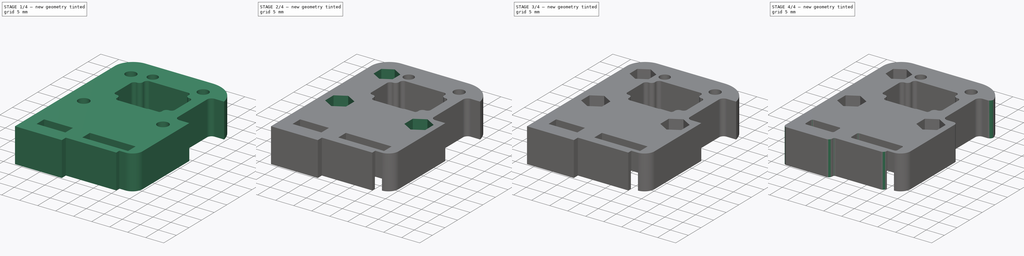
[diagram: build sequence overview — one tinted view per stage of 4, left to right]
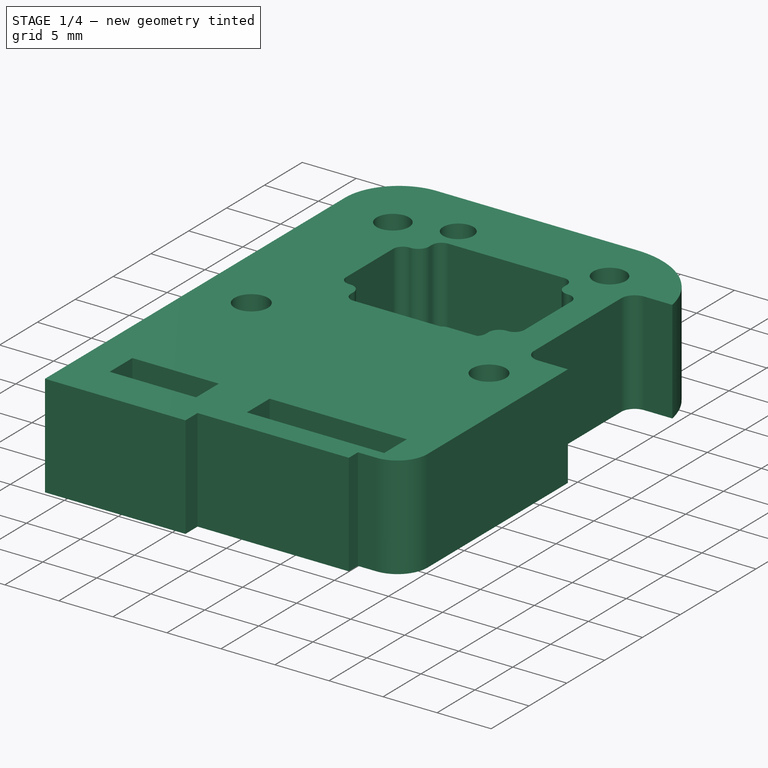
[diagram: stage 1 of 4 — iso view after this stage's code; geometry added in this stage tinted green]
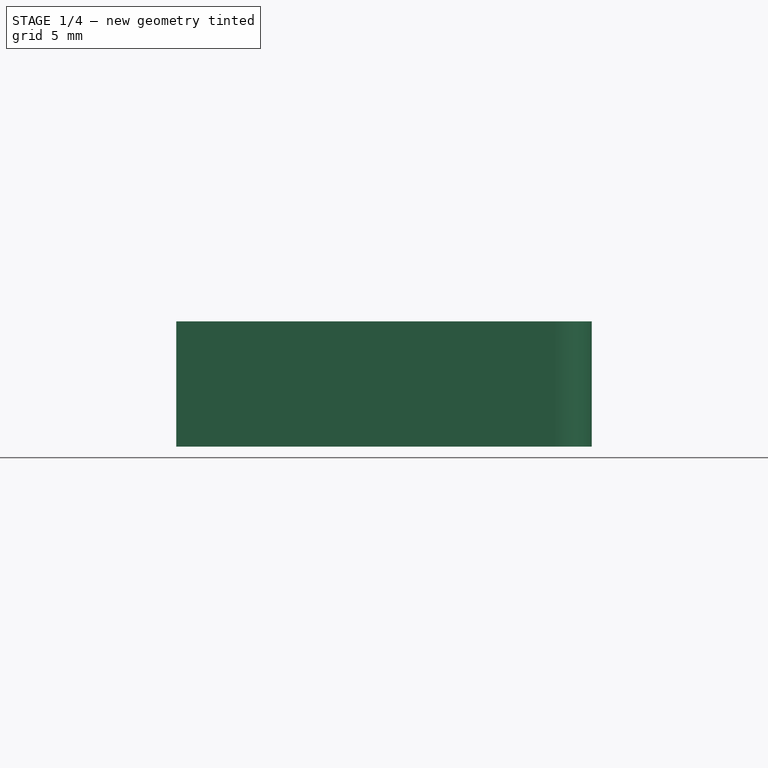
[diagram: stage 1 of 4 — front view after this stage's code; geometry added in this stage tinted green]
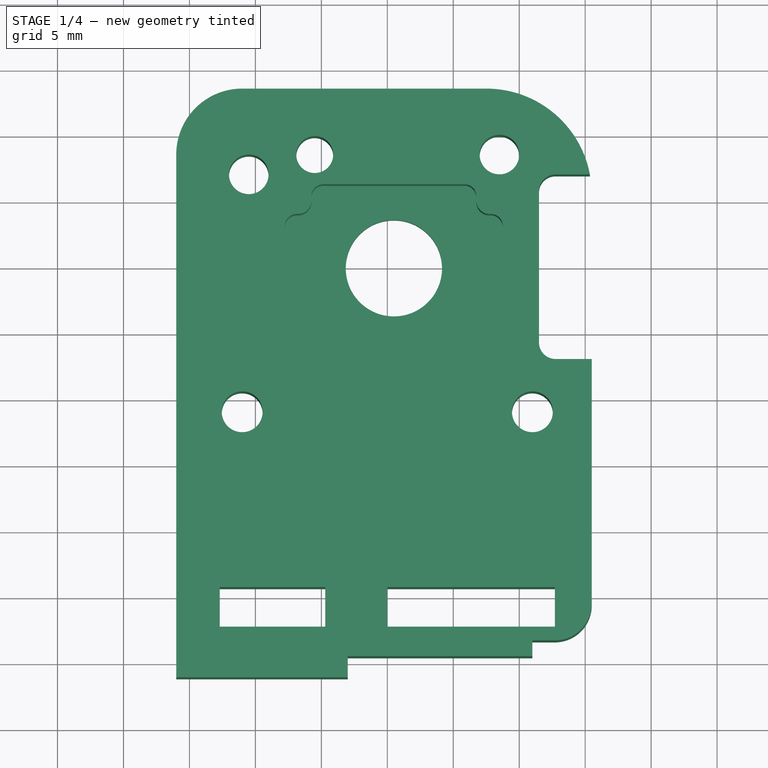
[diagram: stage 1 of 4 — top view after this stage's code; geometry added in this stage tinted green]
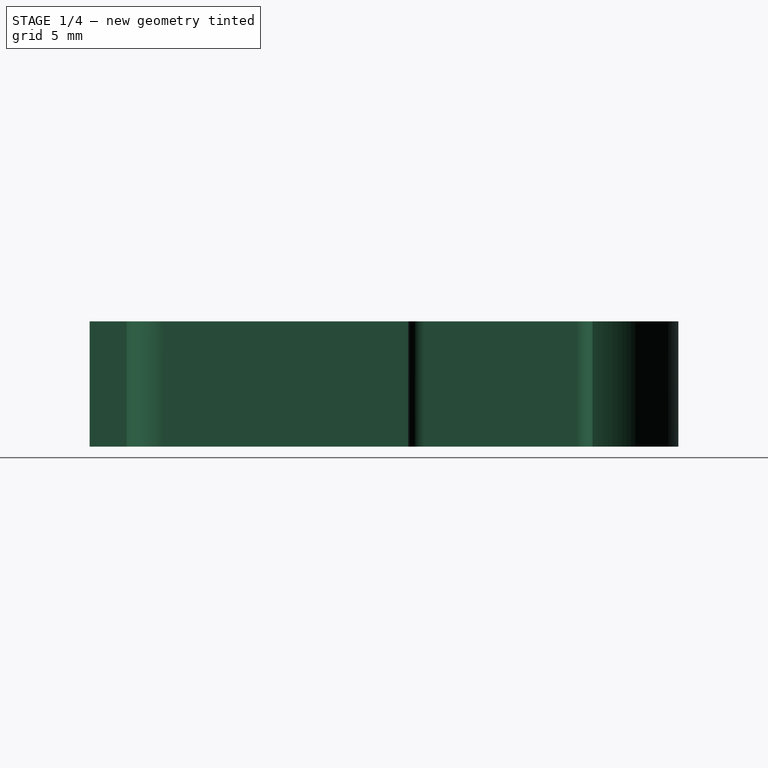
[diagram: stage 1 of 4 — right view after this stage's code; geometry added in this stage tinted green]
FCSTD DOCUMENT  (FreeCAD 0.18.4R)
Label: MJ_3d_holder_left_hybrid_2nd_rotary
License: All rights reserved
LicenseURL: http://en.wikipedia.org/wiki/All_rights_reserved
objects: Sketcher::SketchObject×9, PartDesign::Pocket×8, PartDesign::Fillet×2, PartDesign::Pad×1, PartDesign::Body×1
note: 30 computed .brp shape members not serialized (recipe doc carries the construction recipe); baked Part::Feature solids carry a one-line shape summary decoded from their .brp

FEATURE [Sketcher::SketchObject] Sketch
  MapMode = 5
  Support = -> [XY_Plane]
  sketch-geometry (37):
    g0: GeomPoint X=0 Y=-21.98 Z=0
    g1: LineSegment [constr] StartX=-12.7 StartY=-15.63 StartZ=0 EndX=12.7 EndY=-15.63 EndZ=0
    g2: LineSegment [constr] StartX=12.7 StartY=-15.63 StartZ=0 EndX=12.7 EndY=-28.33 EndZ=0
    g3: LineSegment [constr] StartX=12.7 StartY=-28.33 StartZ=0 EndX=-12.7 EndY=-28.33 EndZ=0
    g4: LineSegment [constr] StartX=-12.7 StartY=-28.33 StartZ=0 EndX=-12.7 EndY=-15.63 EndZ=0
    g5: Circle [constr] CenterX=-10.16 CenterY=-25.79 CenterZ=0 NormalX=0 NormalY=0 NormalZ=1 AngleXU=0 Radius=0.5
    g6: Circle [constr] CenterX=2.54 CenterY=-25.79 CenterZ=0 NormalX=0 NormalY=0 NormalZ=1 AngleXU=0 Radius=0.5
    g7: Circle [constr] CenterX=10.16 CenterY=-25.79 CenterZ=0 NormalX=0 NormalY=0 NormalZ=1 AngleXU=0 Radius=0.5
    g8: Circle CenterX=-11 CenterY=-11 CenterZ=0 NormalX=0 NormalY=0 NormalZ=1 AngleXU=0 Radius=1.55
    g9: Circle CenterX=11 CenterY=-11 CenterZ=0 NormalX=0 NormalY=0 NormalZ=1 AngleXU=0 Radius=1.55
    g10: LineSegment StartX=-11 StartY=13.5 StartZ=0 EndX=7.5 EndY=13.5 EndZ=0
    g11: LineSegment StartX=15.5 StartY=5.5 StartZ=0 EndX=15.5 EndY=-25.53 EndZ=0
    g12: LineSegment StartX=-16 StartY=-31.13 StartZ=0 EndX=-16 EndY=8.5 EndZ=0
    g13: ArcOfCircle CenterX=-11 CenterY=8.5 CenterZ=0 NormalX=0 NormalY=0 NormalZ=1 AngleXU=0 Radius=5 StartAngle=1.5708 EndAngle=3.14159
    g14: ArcOfCircle CenterX=7.5 CenterY=5.5 CenterZ=0 NormalX=0 NormalY=0 NormalZ=1 AngleXU=0 Radius=8 StartAngle=0 EndAngle=1.5708
    g15: LineSegment StartX=-12.7 StartY=-24.29 StartZ=0 EndX=-4.7 EndY=-24.29 EndZ=0
    g16: LineSegment StartX=-4.7 StartY=-24.29 StartZ=0 EndX=-4.7 EndY=-27.29 EndZ=0
    g17: LineSegment StartX=-4.7 StartY=-27.29 StartZ=0 EndX=-12.7 EndY=-27.29 EndZ=0
    g18: LineSegment StartX=-12.7 StartY=-27.29 StartZ=0 EndX=-12.7 EndY=-24.29 EndZ=0
    g19: LineSegment StartX=1.5e-15 StartY=-24.29 StartZ=0 EndX=12.7 EndY=-24.29 EndZ=0
    g20: LineSegment StartX=12.7 StartY=-24.29 StartZ=0 EndX=12.7 EndY=-27.29 EndZ=0
    g21: LineSegment StartX=12.7 StartY=-27.29 StartZ=0 EndX=1.8e-15 EndY=-27.29 EndZ=0
    g22: LineSegment StartX=1.5e-15 StartY=-27.29 StartZ=0 EndX=1.5e-15 EndY=-24.29 EndZ=0
    g23: GeomPoint X=6.35 Y=-25.79 Z=0
    g24: LineSegment StartX=11 StartY=-29.53 StartZ=0 EndX=11 EndY=-28.33 EndZ=0
    g25: LineSegment StartX=11 StartY=-28.33 StartZ=0 EndX=12.7 EndY=-28.33 EndZ=0
    g26: Circle [constr] CenterX=-1e-16 CenterY=-30.87 CenterZ=0 NormalX=0 NormalY=0 NormalZ=1 AngleXU=0 Radius=0.5
    g27: Circle [constr] CenterX=2.54 CenterY=-30.87 CenterZ=0 NormalX=0 NormalY=0 NormalZ=1 AngleXU=0 Radius=0.5
    g28: Circle [constr] CenterX=5.08 CenterY=-30.87 CenterZ=0 NormalX=0 NormalY=0 NormalZ=1 AngleXU=0 Radius=0.5
    g29: LineSegment StartX=-3 StartY=-31.13 StartZ=0 EndX=-3 EndY=-29.53 EndZ=0
    g30: LineSegment StartX=-3 StartY=-29.53 StartZ=0 EndX=11 EndY=-29.53 EndZ=0
    g31: LineSegment StartX=-3 StartY=-31.13 StartZ=0 EndX=-16 EndY=-31.13 EndZ=0
    g32: ArcOfCircle CenterX=12.7 CenterY=-25.53 CenterZ=0 NormalX=0 NormalY=0 NormalZ=1 AngleXU=0 Radius=2.8 StartAngle=4.71239 EndAngle=6.28319
    g33: Circle CenterX=8.5 CenterY=8.5 CenterZ=0 NormalX=0 NormalY=0 NormalZ=1 AngleXU=0 Radius=1.5
    g34: Circle CenterX=-10.5 CenterY=7 CenterZ=0 NormalX=0 NormalY=0 NormalZ=1 AngleXU=0 Radius=1.5
    g35: Circle CenterX=0.5 CenterY=0 CenterZ=0 NormalX=0 NormalY=0 NormalZ=1 AngleXU=0 Radius=3.65
    g36: Circle CenterX=-5.5 CenterY=8.5 CenterZ=0 NormalX=0 NormalY=0 NormalZ=1 AngleXU=0 Radius=1.4
  constraints (102):
    c: PointOnObject(g0,g-2)
    c: Coincident(g1,g2)
    c: Coincident(g2,g3)
    c: Coincident(g3,g4)
    c: Coincident(g4,g1)
    c: Horizontal(g1)
    c: Horizontal(g3)
    c: Vertical(g2)
    c: Vertical(g4)
    c: DistanceY(g2,g2) = 12.7
    c: DistanceX(g1,g1) = 25.4
    c: Symmetric(g1,g2,g0)
    c: Horizontal(g7,g6)
    c: Horizontal(g6,g5)
    c: Equal(g7,g6)
    c: Equal(g6,g5)
    c: Diameter(g7) = 1
    c: DistanceX(g0,g6) = 2.54
    c: DistanceX(g5,g0) = 10.16
    c: DistanceX(g6,g7) = 7.62
    c: Equal(g9,g8)
    c: Symmetric(g8,g9,g-2)
    c: DistanceX(g8,g9) = 22
    c: Diameter(g9) = 3.1
    c: Coincident(g31,g12)
    c: Vertical(g11)
    c: Vertical(g12)
    c: Tangent(g12,g13) = 1.5708
    c: Tangent(g10,g13) = 1.5708
    c: Tangent(g10,g14) = 1.5708
    c: Tangent(g11,g14) = 1.5708
    c: Radius(g14) = 8
    c: DistanceX(g12,g1) = 3.3
    c: DistanceY(g31,g3) = 2.8
    c: Coincident(g15,g16)
    c: Coincident(g16,g17)
    c: Coincident(g17,g18)
    c: Coincident(g18,g15)
    c: Horizontal(g15)
    c: Horizontal(g17)
    c: Vertical(g16)
    c: Vertical(g18)
    c: Coincident(g19,g20)
    c: Coincident(g20,g21)
    c: Coincident(g21,g22)
    c: Coincident(g22,g19)
    c: Horizontal(g19)
    c: Horizontal(g21)
    c: Vertical(g20)
    c: Vertical(g22)
    c: Equal(g16,g22)
    c: DistanceY(g18,g18) = 3
    c: DistanceX(g17,g17) = 8
    c: DistanceX(g21,g21) = 12.7
    c: DistanceX(g15,g5) = 2.54
    c: Symmetric(g6,g7,g23)
    c: DistanceY(g6,g0) = 3.81
    c: Horizontal(g15,g19)
    c: Symmetric(g19,g20,g23)
    c: Vertical(g24)
    c: Coincident(g24,g25)
    c: Horizontal(g25)
    c: Equal(g28,g27)
    c: Equal(g27,g26)
    c: Horizontal(g28,g27)
    c: Horizontal(g27,g26)
    c: Diameter(g26) = 1
    c: Vertical(g27,g6)
    c: DistanceX(g27,g28) = 2.54
    c: DistanceX(g26,g27) = 2.54
    c: DistanceY(g26,g6) = 5.08
    c: Vertical(g29)
    c: Coincident(g29,g30)
    c: Horizontal(g30)
    c: Coincident(g24,g30)
    c: DistanceX(g31,g31) = 13
    c: DistanceY(g29,g3) = 1.2
    c: DistanceY(g24,g24) = 1.2
    c: DistanceX(g30,g30) = 14
    c: Tangent(g11,g32) = 1.5708
    c: Tangent(g25,g32) = -1.5708
    c: Vertical(g25,g2)
    c: Horizontal(g31)
    c: Coincident(g29,g31)
    c: DistanceX(g1,g11) = 2.8
    c: Radius(g13) = 5
    c: DistanceY(g8,g-1) = 11
    c: DistanceY(g29,g-1) = 31.13
    c: Horizontal(g10)
    c: Diameter(g33) = 3
    c: DistanceX(g-1,g33) = 8.5
    c: DistanceY(g-1,g33) = 8.5
    c: Diameter(g34) = 3
    c: DistanceX(g34,g-1) = 10.5
    c: DistanceY(g-1,g34) = 7
    c: PointOnObject(g35,g-1)
    c: DistanceX(g-1,g35) = 0.5
    c: Diameter(g35) = 7.3
    c: Diameter(g36) = 2.8
    c: DistanceY(g-1,g36) = 8.5
    c: DistanceX(g36,g33) = 14
    c: DistanceY(g-1,g14) = 5.5
FEATURE [PartDesign::Pad] Pad
  Length = 9.5
  Length2 = 100
  Profile = -> Sketch
  Type = 0
FEATURE [Sketcher::SketchObject] Sketch002  label="Sketch_rotary_7mm_pocket"
  MapMode = 5
  Placement = pos=(0,0,9.5) rot=(0,0,1;0rad)
  Support = -> [Pad]
  sketch-geometry (25):
    g0: LineSegment StartX=7.85 StartY=-4 StartZ=0 EndX=7.75 EndY=-4 EndZ=0
    g1: LineSegment StartX=-7.75 StartY=-3.1 StartZ=0 EndX=-7.75 EndY=3.1 EndZ=0
    g2: LineSegment StartX=-6.85 StartY=4 StartZ=0 EndX=-6.75 EndY=4 EndZ=0
    g3: LineSegment StartX=8.75 StartY=3.1 StartZ=0 EndX=8.75 EndY=-3.1 EndZ=0
    g4: LineSegment StartX=-4.85 StartY=6.25 StartZ=0 EndX=5.85 EndY=6.25 EndZ=0
    g5: LineSegment StartX=6.75 StartY=5.35 StartZ=0 EndX=6.75 EndY=5 EndZ=0
    g6: LineSegment StartX=5.85 StartY=-6.25 StartZ=0 EndX=-4.85 EndY=-6.25 EndZ=0
    g7: LineSegment StartX=-5.75 StartY=-5.35 StartZ=0 EndX=-5.75 EndY=-5 EndZ=0
    g8: LineSegment StartX=7.75 StartY=4 StartZ=0 EndX=7.85 EndY=4 EndZ=0
    g9: LineSegment StartX=-6.75 StartY=-4 StartZ=0 EndX=-6.85 EndY=-4 EndZ=0
    g10: LineSegment StartX=-5.75 StartY=5 StartZ=0 EndX=-5.75 EndY=5.35 EndZ=0
    g11: LineSegment StartX=6.75 StartY=-5 StartZ=0 EndX=6.75 EndY=-5.35 EndZ=0
    g12: GeomPoint X=0.5 Y=0 Z=0
    g13: ArcOfCircle CenterX=-6.75 CenterY=-5 CenterZ=0 NormalX=0 NormalY=0 NormalZ=1 AngleXU=0 Radius=1 StartAngle=4e-16 EndAngle=1.5708
    g14: ArcOfCircle CenterX=7.75 CenterY=-5 CenterZ=0 NormalX=0 NormalY=0 NormalZ=1 AngleXU=0 Radius=1 StartAngle=1.5708 EndAngle=3.14159
    g15: ArcOfCircle CenterX=7.75 CenterY=5 CenterZ=0 NormalX=0 NormalY=0 NormalZ=1 AngleXU=0 Radius=1 StartAngle=3.14159 EndAngle=4.71239
    g16: ArcOfCircle CenterX=-6.75 CenterY=5 CenterZ=0 NormalX=0 NormalY=0 NormalZ=1 AngleXU=0 Radius=1 StartAngle=4.71239 EndAngle=6.28319
    g17: ArcOfCircle CenterX=-4.85 CenterY=-5.35 CenterZ=0 NormalX=0 NormalY=0 NormalZ=1 AngleXU=0 Radius=0.9 StartAngle=3.14159 EndAngle=4.71239
    g18: ArcOfCircle CenterX=5.85 CenterY=-5.35 CenterZ=0 NormalX=0 NormalY=0 NormalZ=1 AngleXU=0 Radius=0.9 StartAngle=4.71239 EndAngle=6.28319
    g19: ArcOfCircle CenterX=7.85 CenterY=-3.1 CenterZ=0 NormalX=0 NormalY=0 NormalZ=1 AngleXU=0 Radius=0.9 StartAngle=4.71239 EndAngle=6.28319
    g20: ArcOfCircle CenterX=-6.85 CenterY=-3.1 CenterZ=0 NormalX=0 NormalY=0 NormalZ=1 AngleXU=0 Radius=0.9 StartAngle=3.14159 EndAngle=4.71239
    g21: ArcOfCircle CenterX=-6.85 CenterY=3.1 CenterZ=0 NormalX=0 NormalY=0 NormalZ=1 AngleXU=0 Radius=0.9 StartAngle=1.5708 EndAngle=3.14159
    g22: ArcOfCircle CenterX=-4.85 CenterY=5.35 CenterZ=0 NormalX=0 NormalY=0 NormalZ=1 AngleXU=0 Radius=0.9 StartAngle=1.5708 EndAngle=3.14159
    g23: ArcOfCircle CenterX=5.85 CenterY=5.35 CenterZ=0 NormalX=0 NormalY=0 NormalZ=1 AngleXU=0 Radius=0.9 StartAngle=0 EndAngle=1.5708
    g24: ArcOfCircle CenterX=7.85 CenterY=3.1 CenterZ=0 NormalX=0 NormalY=0 NormalZ=1 AngleXU=0 Radius=0.9 StartAngle=1e-16 EndAngle=1.5708
  constraints (56):
    c: Horizontal(g0)
    c: Horizontal(g2)
    c: Vertical(g1)
    c: Vertical(g3)
    c: Horizontal(g4)
    c: Horizontal(g6)
    c: Vertical(g5)
    c: Vertical(g7)
    c: Tangent(g2,g8)
    c: Tangent(g0,g9)
    c: Tangent(g7,g10)
    c: Tangent(g5,g11)
    c: PointOnObject(g12,g-1)
    c: DistanceX(g-1,g12) = 0.5
    c: Tangent(g9,g13) = -1.5708
    c: Tangent(g7,g13) = -1.5708
    c: Tangent(g11,g14) = -1.5708
    c: Tangent(g0,g14) = -1.5708
    c: Tangent(g8,g15) = -1.5708
    c: Tangent(g5,g15) = -1.5708
    c: Tangent(g2,g16) = -1.5708
    c: Tangent(g10,g16) = -1.5708
    c: Equal(g16,g13)
    c: Equal(g13,g14)
    c: Equal(g14,g15)
    c: Radius(g14) = 1
    c: DistanceY(g9,g2) = 8
    c: DistanceX(g10,g5) = 12.5
    c: Tangent(g7,g17) = 1.5708
    c: Tangent(g6,g17) = 1.5708
    c: Tangent(g11,g18) = 1.5708
    c: Tangent(g6,g18) = 1.5708
    c: Tangent(g0,g19) = 1.5708
    c: Tangent(g3,g19) = 1.5708
    c: Tangent(g9,g20) = 1.5708
    c: Tangent(g1,g20) = 1.5708
    c: Tangent(g1,g21) = 1.5708
    c: Tangent(g2,g21) = 1.5708
    c: Tangent(g10,g22) = 1.5708
    c: Tangent(g4,g22) = 1.5708
    c: Tangent(g5,g23) = 1.5708
    c: Tangent(g4,g23) = 1.5708
    c: Tangent(g3,g24) = 1.5708
    c: Tangent(g8,g24) = 1.5708
    c: Equal(g22,g23)
    c: Equal(g23,g24)
    c: Equal(g24,g19)
    c: Equal(g19,g18)
    c: Equal(g18,g17)
    c: Equal(g17,g20)
    c: Equal(g20,g21)
    c: Radius(g18) = 0.9
    c: DistanceY(g6,g4) = 12.5
    c: DistanceX(g1,g3) = 16.5
    c: Symmetric(g4,g6,g12)
    c: Symmetric(g3,g1,g12)
FEATURE [PartDesign::Pocket] Pocket  label="RotaryPocket"
  BaseFeature = -> Pad
  Length = 7
  Length2 = 100
  Profile = -> Sketch002
  Type = 0
FEATURE [Sketcher::SketchObject] Sketch007
  MapMode = 5
  Placement = pos=(0,0,9.5) rot=(0,0,1;0rad)
  Support = -> [Pocket]
  sketch-geometry (7):
    g0: LineSegment StartX=12.75 StartY=7 StartZ=0 EndX=16.5 EndY=7 EndZ=0
    g1: LineSegment StartX=16.5 StartY=7 StartZ=0 EndX=16.5 EndY=-7 EndZ=0
    g2: LineSegment StartX=16.5 StartY=-7 StartZ=0 EndX=12.75 EndY=-7 EndZ=0
    g3: LineSegment StartX=11.5 StartY=-5.75 StartZ=0 EndX=11.5 EndY=5.75 EndZ=0
    g4: GeomPoint X=13.5 Y=0 Z=0
    g5: ArcOfCircle CenterX=12.75 CenterY=5.75 CenterZ=0 NormalX=0 NormalY=0 NormalZ=1 AngleXU=0 Radius=1.25 StartAngle=1.5708 EndAngle=3.14159
    g6: ArcOfCircle CenterX=12.75 CenterY=-5.75 CenterZ=0 NormalX=0 NormalY=0 NormalZ=1 AngleXU=0 Radius=1.25 StartAngle=3.14159 EndAngle=4.71239
  constraints (17):
    c: Coincident(g0,g1)
    c: Coincident(g1,g2)
    c: Horizontal(g0)
    c: Horizontal(g2)
    c: DistanceY(g1,g0) = 14
    c: PointOnObject(g4,g-1)
    c: DistanceX(g-1,g4) = 13.5
    c: Tangent(g3,g5) = 1.5708
    c: Tangent(g0,g5) = 1.5708
    c: Tangent(g2,g6) = 1.5708
    c: Tangent(g3,g6) = 1.5708
    c: Equal(g6,g5)
    c: DistanceX(g3,g0) = 5
    c: DistanceX(g3,g4) = 2
    c: Vertical(g3)
    c: Symmetric(g1,g0,g-1)
    c: Radius(g5) = 1.25
FEATURE [PartDesign::Pocket] Pocket001  label="RotaryPinsPocke"
  BaseFeature = -> Pocket
  Length = 10
  Length2 = 100
  Profile = -> Sketch007
  Type = 0
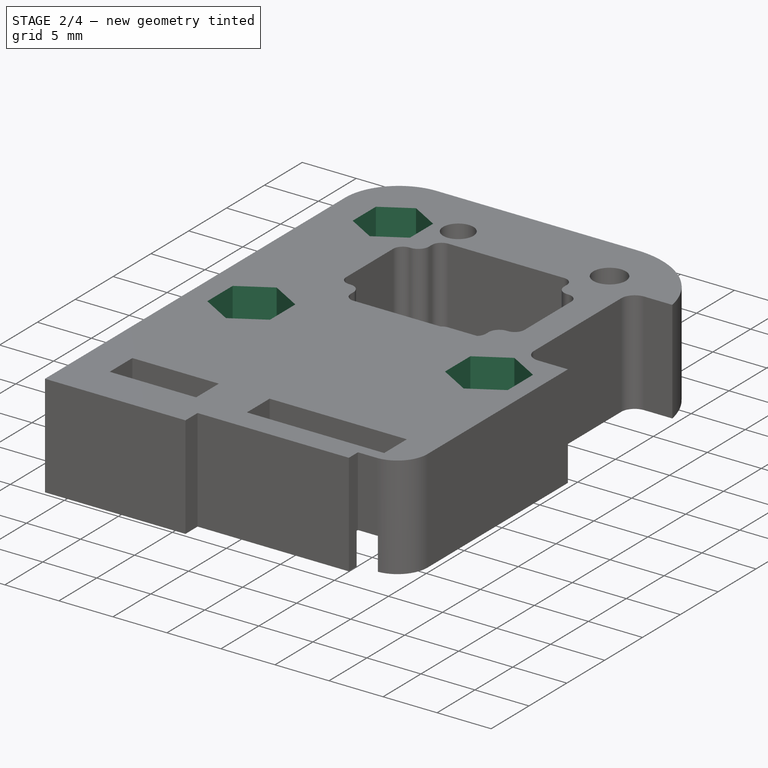
[diagram: stage 2 of 4 — iso view after this stage's code; geometry added in this stage tinted green]
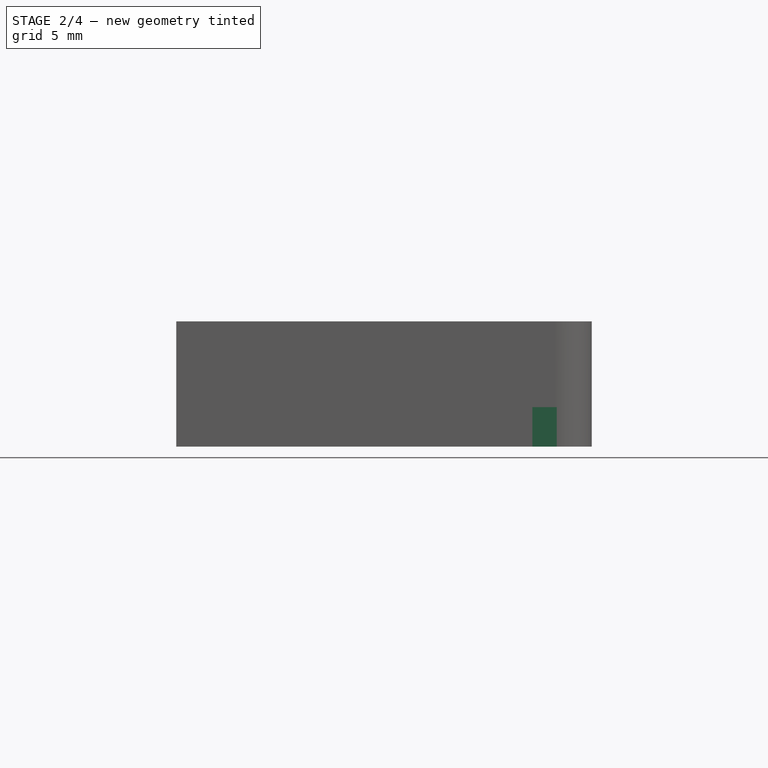
[diagram: stage 2 of 4 — front view after this stage's code; geometry added in this stage tinted green]
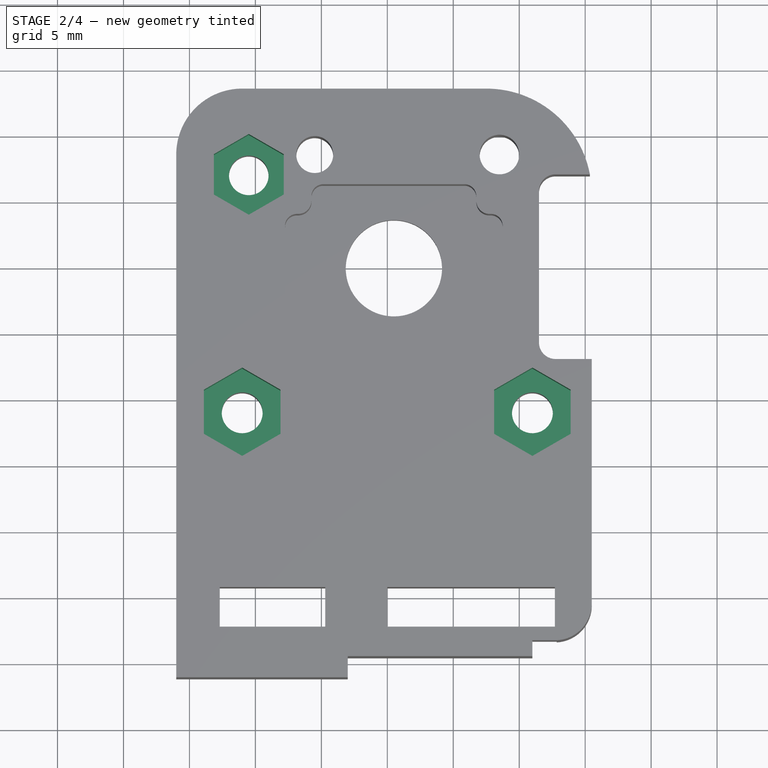
[diagram: stage 2 of 4 — top view after this stage's code; geometry added in this stage tinted green]
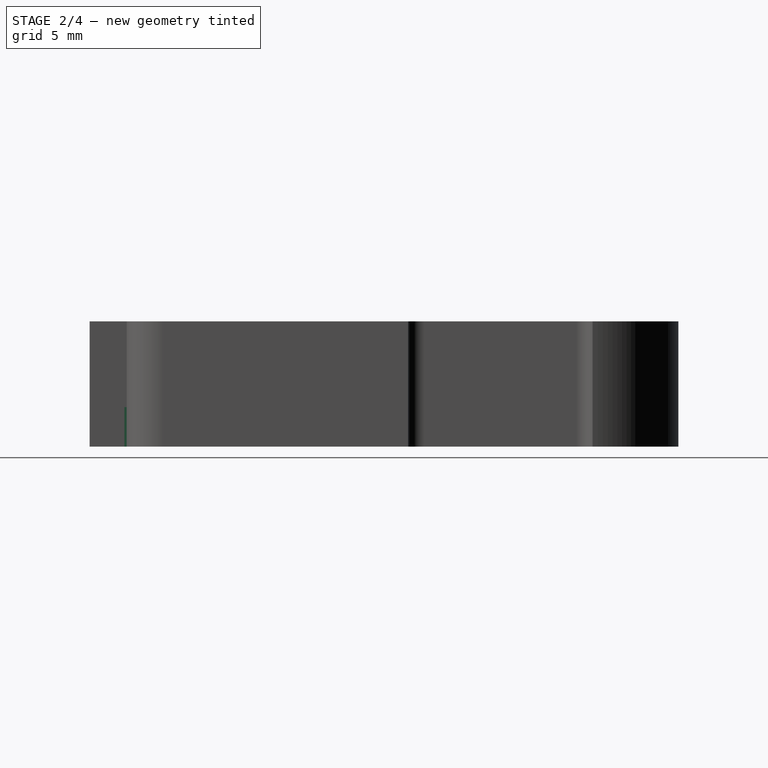
[diagram: stage 2 of 4 — right view after this stage's code; geometry added in this stage tinted green]
FEATURE [Sketcher::SketchObject] Sketch008
  MapMode = 5
  Placement = pos=(0,0,9.5) rot=(0,0,1;0rad)
  Support = -> [Pocket001]
  sketch-geometry (14):
    g0: LineSegment StartX=-8.1 StartY=-12.6743 StartZ=0 EndX=-8.1 EndY=-9.32568 EndZ=0
    g1: LineSegment StartX=-8.1 StartY=-9.32568 StartZ=0 EndX=-11 EndY=-7.65137 EndZ=0
    g2: LineSegment StartX=-11 StartY=-7.65137 StartZ=0 EndX=-13.9 EndY=-9.32568 EndZ=0
    g3: LineSegment StartX=-13.9 StartY=-9.32568 StartZ=0 EndX=-13.9 EndY=-12.6743 EndZ=0
    g4: LineSegment StartX=-13.9 StartY=-12.6743 StartZ=0 EndX=-11 EndY=-14.3486 EndZ=0
    g5: LineSegment StartX=-11 StartY=-14.3486 StartZ=0 EndX=-8.1 EndY=-12.6743 EndZ=0
    g6: Circle [constr] CenterX=-11 CenterY=-11 CenterZ=0 NormalX=0 NormalY=0 NormalZ=1 AngleXU=0 Radius=3.34863
    g7: LineSegment StartX=13.9 StartY=-12.6743 StartZ=0 EndX=13.9 EndY=-9.32568 EndZ=0
    g8: LineSegment StartX=13.9 StartY=-9.32568 StartZ=0 EndX=11 EndY=-7.65137 EndZ=0
    g9: LineSegment StartX=11 StartY=-7.65137 StartZ=0 EndX=8.1 EndY=-9.32568 EndZ=0
    g10: LineSegment StartX=8.1 StartY=-9.32568 StartZ=0 EndX=8.1 EndY=-12.6743 EndZ=0
    g11: LineSegment StartX=8.1 StartY=-12.6743 StartZ=0 EndX=11 EndY=-14.3486 EndZ=0
    g12: LineSegment StartX=11 StartY=-14.3486 StartZ=0 EndX=13.9 EndY=-12.6743 EndZ=0
    g13: Circle [constr] CenterX=11 CenterY=-11 CenterZ=0 NormalX=0 NormalY=0 NormalZ=1 AngleXU=0 Radius=3.34863
  constraints (34):
    c: Coincident(g0,g1)
    c: Coincident(g1,g2)
    c: Coincident(g2,g3)
    c: Coincident(g3,g4)
    c: Coincident(g4,g5)
    c: Coincident(g5,g0)
    c: Equal(g0, g1-g5) x5
    c: PointOnObject(g0,g6)
    c: PointOnObject(g1,g6)
    c: PointOnObject(g2,g6)
    c: PointOnObject(g3,g6)
    c: PointOnObject(g4,g6)
    c: PointOnObject(g5,g6)
    c: Coincident(g7,g8)
    c: Coincident(g8,g9)
    c: Coincident(g9,g10)
    c: Coincident(g10,g11)
    c: Coincident(g11,g12)
    c: Coincident(g12,g7)
    c: Equal(g7, g8-g12) x5
    c: PointOnObject(g7,g13)
    c: PointOnObject(g8,g13)
    c: PointOnObject(g9,g13)
    c: PointOnObject(g10,g13)
    c: PointOnObject(g11,g13)
    c: PointOnObject(g12,g13)
    c: DistanceY(g6,g-1) = 11
    c: Horizontal(g13,g6)
    c: DistanceX(g6,g-1) = 11
    c: DistanceX(g6,g13) = 22
    c: Vertical(g3)
    c: Vertical(g7)
    c: DistanceX(g3,g0) = 5.8
    c: DistanceX(g10,g7) = 5.8
FEATURE [PartDesign::Pocket] Pocket002  label="M3HexNutsPocket"
  BaseFeature = -> Pocket001
  Length = 4.5
  Length2 = 100
  Profile = -> Sketch008
  Type = 0
FEATURE [Sketcher::SketchObject] Sketch009
  MapMode = 5
  Placement = pos=(0,0,9.5) rot=(0,0,1;0rad)
  Support = -> [Pocket002]
  sketch-geometry (7):
    g0: LineSegment StartX=-7.85 StartY=5.47002 StartZ=0 EndX=-7.85 EndY=8.52998 EndZ=0
    g1: LineSegment StartX=-7.85 StartY=8.52998 StartZ=0 EndX=-10.5 EndY=10.06 EndZ=0
    g2: LineSegment StartX=-10.5 StartY=10.06 StartZ=0 EndX=-13.15 EndY=8.52998 EndZ=0
    g3: LineSegment StartX=-13.15 StartY=8.52998 StartZ=0 EndX=-13.15 EndY=5.47002 EndZ=0
    g4: LineSegment StartX=-13.15 StartY=5.47002 StartZ=0 EndX=-10.5 EndY=3.94004 EndZ=0
    g5: LineSegment StartX=-10.5 StartY=3.94004 StartZ=0 EndX=-7.85 EndY=5.47002 EndZ=0
    g6: Circle [constr] CenterX=-10.5 CenterY=7 CenterZ=0 NormalX=0 NormalY=0 NormalZ=1 AngleXU=0 Radius=3.05996
  constraints (17):
    c: Coincident(g0,g1)
    c: Coincident(g1,g2)
    c: Coincident(g2,g3)
    c: Coincident(g3,g4)
    c: Coincident(g4,g5)
    c: Coincident(g5,g0)
    c: Equal(g0, g1-g5) x5
    c: PointOnObject(g0,g6)
    c: PointOnObject(g1,g6)
    c: PointOnObject(g2,g6)
    c: PointOnObject(g3,g6)
    c: PointOnObject(g4,g6)
    c: PointOnObject(g5,g6)
    c: DistanceY(g-1,g6) = 7
    c: DistanceX(g6,g-1) = 10.5
    c: Distance(g2,g0) = 5.3
    c: Angle(g4) = -0.523599
FEATURE [PartDesign::Pocket] Pocket003  label="M25HexNutPocket"
  BaseFeature = -> Pocket002
  Length = 4.5
  Length2 = 100
  Profile = -> Sketch009
  Type = 0
FEATURE [Sketcher::SketchObject] Sketch005  label="GrayHill_Mainpocket_3mm_Sketch"
  MapMode = 5
  Placement = pos=(0,0,0) rot=(1,0,0;3.14159rad)
  Support = -> [Pocket003]
  sketch-geometry (5):
    g0: GeomPoint X=0 Y=22 Z=0
    g1: LineSegment StartX=12.85 StartY=15.5 StartZ=0 EndX=-12.85 EndY=15.5 EndZ=0
    g2: LineSegment StartX=-12.85 StartY=15.5 StartZ=0 EndX=-12.85 EndY=28.5 EndZ=0
    g3: LineSegment StartX=-12.85 StartY=28.5 StartZ=0 EndX=12.85 EndY=28.5 EndZ=0
    g4: LineSegment StartX=12.85 StartY=28.5 StartZ=0 EndX=12.85 EndY=15.5 EndZ=0
  constraints (13):
    c: PointOnObject(g0,g-2)
    c: DistanceY(g-1,g0) = 22
    c: Coincident(g1,g2)
    c: Coincident(g2,g3)
    c: Coincident(g3,g4)
    c: Coincident(g4,g1)
    c: Horizontal(g1)
    c: Horizontal(g3)
    c: Vertical(g2)
    c: Vertical(g4)
    c: DistanceY(g2,g2) = 13
    c: DistanceX(g3,g3) = 25.7
    c: Symmetric(g1,g2,g0)
FEATURE [PartDesign::Pocket] Pocket004  label="Grayhill_main_3mm_Pocket"
  BaseFeature = -> Pocket003
  Length = 3
  Length2 = 100
  Profile = -> Sketch005
  Type = 0
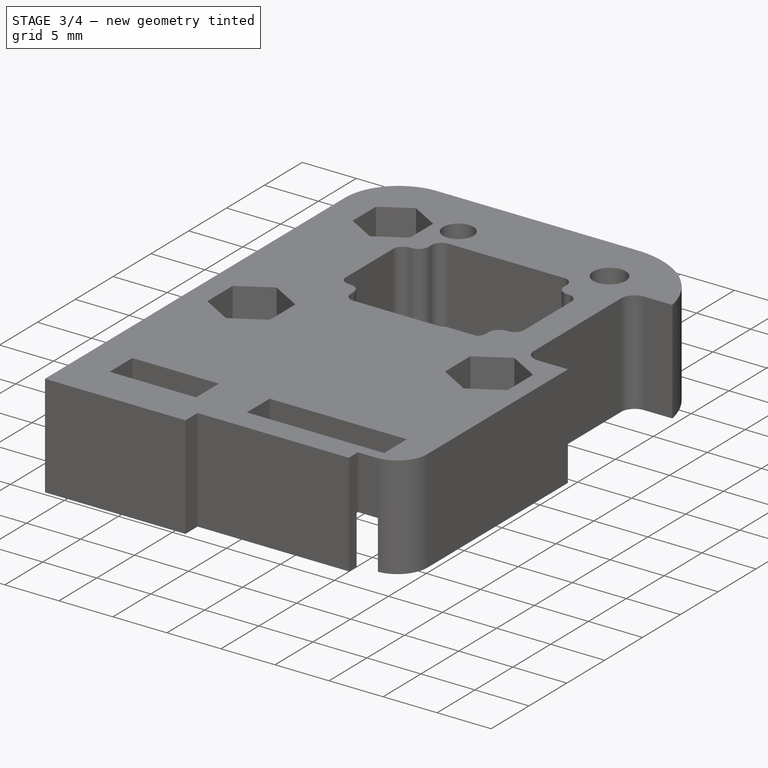
[diagram: stage 3 of 4 — iso view after this stage's code; geometry added in this stage tinted green]
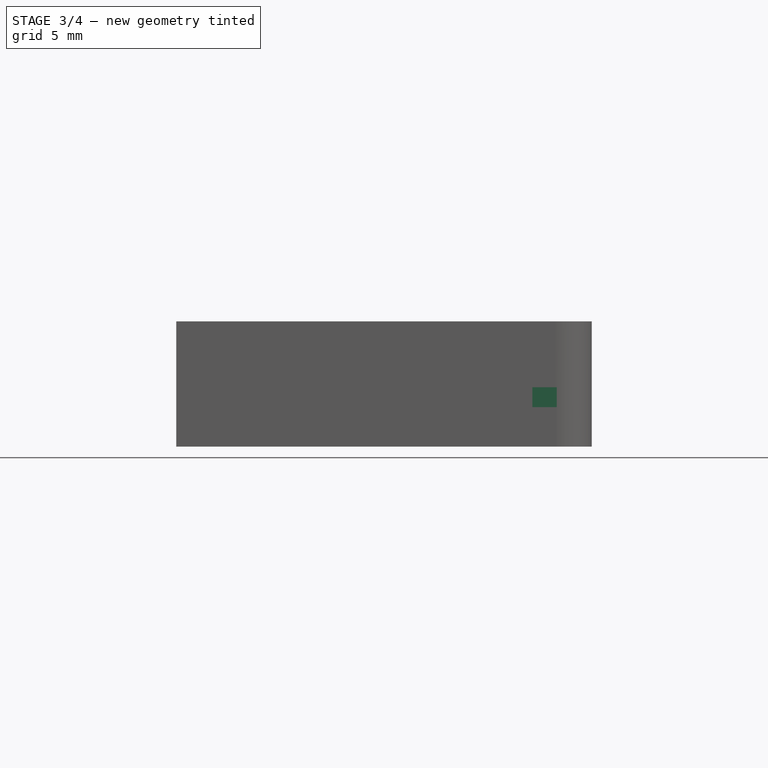
[diagram: stage 3 of 4 — front view after this stage's code; geometry added in this stage tinted green]
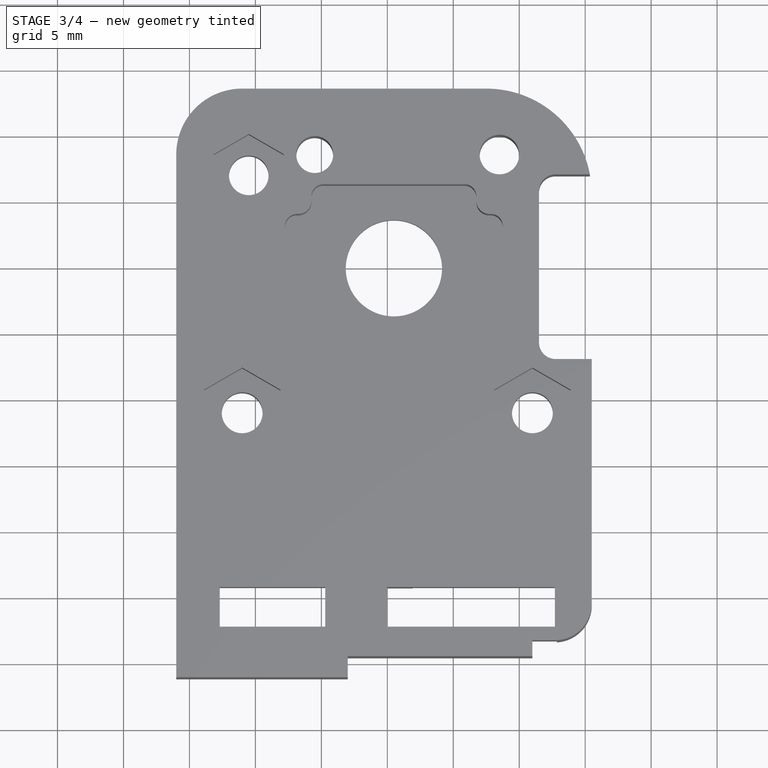
[diagram: stage 3 of 4 — top view after this stage's code; geometry added in this stage tinted green]
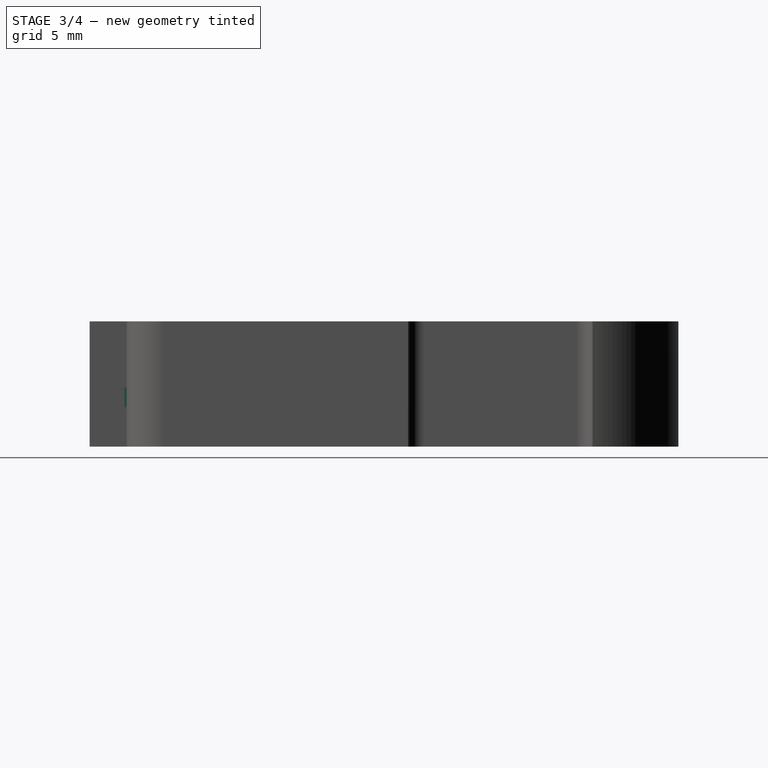
[diagram: stage 3 of 4 — right view after this stage's code; geometry added in this stage tinted green]
FEATURE [Sketcher::SketchObject] Sketch010
  MapMode = 5
  Placement = pos=(0,0,0) rot=(1,0,0;3.14159rad)
  sketch-geometry (5):
    g0: LineSegment StartX=-16 StartY=-10 StartZ=0 EndX=-11 EndY=-10 EndZ=0
    g1: LineSegment StartX=-10 StartY=-11 StartZ=0 EndX=-10 EndY=-14 EndZ=0
    g2: LineSegment StartX=-10 StartY=-14 StartZ=0 EndX=-16 EndY=-14 EndZ=0
    g3: LineSegment StartX=-16 StartY=-14 StartZ=0 EndX=-16 EndY=-10 EndZ=0
    g4: ArcOfCircle CenterX=-11 CenterY=-11 CenterZ=0 NormalX=0 NormalY=0 NormalZ=1 AngleXU=0 Radius=1 StartAngle=1.12e-14 EndAngle=1.5708
  constraints (14):
    c: Coincident(g1,g2)
    c: Coincident(g2,g3)
    c: Coincident(g3,g0)
    c: Horizontal(g0)
    c: Horizontal(g2)
    c: Vertical(g1)
    c: Vertical(g3)
    c: DistanceX(g2,g2) = 6
    c: DistanceY(g3,g3) = 4
    c: DistanceY(g0,g-1) = 10
    c: DistanceX(g1,g-1) = 10
    c: Tangent(g0,g4) = 1.5708
    c: Tangent(g1,g4) = 1.5708
    c: Radius(g4) = 1
FEATURE [PartDesign::Pocket] Pocket006  label="TempSensor_cutout_Pocket"
  BaseFeature = -> Pocket004
  Length = 2.5
  Length2 = 100
  Profile = -> Sketch010
  Type = 0
FEATURE [Sketcher::SketchObject] Sketch006  label="Grayhill_bottom_pocket_1_4mm_Sketch"
  MapMode = 5
  Placement = pos=(0,0,3) rot=(1,0,0;3.14159rad)
  Support = -> [Pocket006]
  sketch-geometry (35):
    g0: GeomPoint X=0 Y=22 Z=0
    g1: LineSegment [constr] StartX=12.85 StartY=15.5 StartZ=0 EndX=-12.85 EndY=15.5 EndZ=0
    g2: LineSegment [constr] StartX=-12.85 StartY=15.5 StartZ=0 EndX=-12.85 EndY=28.5 EndZ=0
    g3: LineSegment [constr] StartX=-12.85 StartY=28.5 StartZ=0 EndX=12.85 EndY=28.5 EndZ=0
    g4: LineSegment [constr] StartX=12.85 StartY=28.5 StartZ=0 EndX=12.85 EndY=15.5 EndZ=0
    g5: LineSegment [constr] StartX=12.85 StartY=20.5 StartZ=0 EndX=-12.85 EndY=20.5 EndZ=0
    g6: LineSegment [constr] StartX=-12.85 StartY=20.5 StartZ=0 EndX=-12.85 EndY=23.5 EndZ=0
    g7: LineSegment [constr] StartX=-12.85 StartY=23.5 StartZ=0 EndX=12.85 EndY=23.5 EndZ=0
    g8: LineSegment [constr] StartX=12.85 StartY=23.5 StartZ=0 EndX=12.85 EndY=20.5 EndZ=0
    g9: LineSegment [constr] StartX=1.5 StartY=15.5 StartZ=0 EndX=-1.5 EndY=15.5 EndZ=0
    g10: LineSegment [constr] StartX=-1.5 StartY=15.5 StartZ=0 EndX=-1.5 EndY=28.5 EndZ=0
    g11: LineSegment [constr] StartX=-1.5 StartY=28.5 StartZ=0 EndX=1.5 EndY=28.5 EndZ=0
    g12: LineSegment [constr] StartX=1.5 StartY=28.5 StartZ=0 EndX=1.5 EndY=15.5 EndZ=0
    g13: GeomPoint X=12.85 Y=22 Z=0
    g14: Circle CenterX=0 CenterY=22 CenterZ=0 NormalX=0 NormalY=0 NormalZ=1 AngleXU=0 Radius=1.8
    g15: LineSegment StartX=-12.85 StartY=20.5 StartZ=0 EndX=-3.5 EndY=20.5 EndZ=0
    g16: LineSegment StartX=-1.5 StartY=18.5 StartZ=0 EndX=-1.5 EndY=15.5 EndZ=0
    g17: LineSegment StartX=-1.5 StartY=15.5 StartZ=0 EndX=-12.85 EndY=15.5 EndZ=0
    g18: LineSegment StartX=-12.85 StartY=15.5 StartZ=0 EndX=-12.85 EndY=20.5 EndZ=0
    g19: LineSegment StartX=1.5 StartY=15.5 StartZ=0 EndX=12.85 EndY=15.5 EndZ=0
    g20: LineSegment StartX=12.85 StartY=15.5 StartZ=0 EndX=12.85 EndY=20.5 EndZ=0
    g21: LineSegment StartX=12.85 StartY=20.5 StartZ=0 EndX=3.5 EndY=20.5 EndZ=0
    g22: LineSegment StartX=1.5 StartY=18.5 StartZ=0 EndX=1.5 EndY=15.5 EndZ=0
    g23: LineSegment StartX=-12.85 StartY=23.5 StartZ=0 EndX=-3.5 EndY=23.5 EndZ=0
    g24: LineSegment StartX=-1.5 StartY=25.5 StartZ=0 EndX=-1.5 EndY=28.5 EndZ=0
    g25: LineSegment StartX=-1.5 StartY=28.5 StartZ=0 EndX=-12.85 EndY=28.5 EndZ=0
    g26: LineSegment StartX=-12.85 StartY=28.5 StartZ=0 EndX=-12.85 EndY=23.5 EndZ=0
    g27: LineSegment StartX=1.5 StartY=28.5 StartZ=0 EndX=12.85 EndY=28.5 EndZ=0
    g28: LineSegment StartX=12.85 StartY=28.5 StartZ=0 EndX=12.85 EndY=23.5 EndZ=0
    g29: LineSegment StartX=12.85 StartY=23.5 StartZ=0 EndX=3.5 EndY=23.5 EndZ=0
    g30: LineSegment StartX=1.5 StartY=25.5 StartZ=0 EndX=1.5 EndY=28.5 EndZ=0
    g31: ArcOfCircle CenterX=3.5 CenterY=25.5 CenterZ=0 NormalX=0 NormalY=0 NormalZ=1 AngleXU=0 Radius=2 StartAngle=3.14159 EndAngle=4.71239
    g32: ArcOfCircle CenterX=3.5 CenterY=18.5 CenterZ=0 NormalX=0 NormalY=0 NormalZ=1 AngleXU=0 Radius=2 StartAngle=1.5708 EndAngle=3.14159
    g33: ArcOfCircle CenterX=-3.5 CenterY=18.5 CenterZ=0 NormalX=0 NormalY=0 NormalZ=1 AngleXU=0 Radius=2 StartAngle=6e-16 EndAngle=1.5708
    g34: ArcOfCircle CenterX=-3.5 CenterY=25.5 CenterZ=0 NormalX=0 NormalY=0 NormalZ=1 AngleXU=0 Radius=2 StartAngle=4.71239 EndAngle=6.28319
  constraints (87):
    c: PointOnObject(g0,g-2)
    c: DistanceY(g-1,g0) = 22
    c: Coincident(g1,g2)
    c: Coincident(g2,g3)
    c: Coincident(g3,g4)
    c: Coincident(g4,g1)
    c: Horizontal(g1)
    c: Horizontal(g3)
    c: Vertical(g2)
    c: Vertical(g4)
    c: DistanceY(g2,g2) = 13
    c: DistanceX(g1,g1) = 25.7
    c: Symmetric(g1,g2,g0)
    c: Coincident(g5,g6)
    c: Coincident(g6,g7)
    c: Coincident(g7,g8)
    c: Coincident(g8,g5)
    c: Horizontal(g5)
    c: Horizontal(g7)
    c: Vertical(g6)
    c: Vertical(g8)
    c: PointOnObject(g5,g4)
    c: PointOnObject(g6,g2)
    c: Coincident(g9,g10)
    c: Coincident(g10,g11)
    c: Coincident(g11,g12)
    c: Coincident(g12,g9)
    c: Horizontal(g11)
    c: Vertical(g10)
    c: Vertical(g12)
    c: PointOnObject(g9,g1)
    c: PointOnObject(g10,g3)
    c: DistanceY(g5,g7) = 3
    c: DistanceX(g9,g9) = 3
    c: Symmetric(g9,g9,g-2)
    c: Symmetric(g5,g7,g13)
    c: Horizontal(g13,g0)
    c: Coincident(g14,g0)
    c: Diameter(g14) = 3.6
    c: Coincident(g16,g17)
    c: Coincident(g17,g18)
    c: Coincident(g18,g15)
    c: Horizontal(g15)
    c: Horizontal(g17)
    c: Vertical(g16)
    c: Vertical(g18)
    c: Coincident(g15,g5)
    c: Coincident(g16,g9)
    c: Coincident(g19,g20)
    c: Coincident(g20,g21)
    c: Coincident(g22,g19)
    c: Horizontal(g19)
    c: Horizontal(g21)
    c: Vertical(g20)
    c: Vertical(g22)
    c: Coincident(g19,g9)
    c: Coincident(g20,g5)
    c: Coincident(g24,g25)
    c: Coincident(g25,g26)
    c: Coincident(g26,g23)
    c: Horizontal(g23)
    c: Horizontal(g25)
    c: Vertical(g24)
    c: Vertical(g26)
    c: Coincident(g23,g6)
    c: Coincident(g24,g10)
    c: Coincident(g27,g28)
    c: Coincident(g28,g29)
    c: Coincident(g30,g27)
    c: Horizontal(g27)
    c: Horizontal(g29)
    c: Vertical(g28)
    c: Vertical(g30)
    c: Coincident(g27,g11)
    c: Coincident(g28,g7)
    c: Tangent(g30,g31) = 1.5708
    c: Tangent(g29,g31) = 1.5708
    c: Tangent(g21,g32) = -1.5708
    c: Tangent(g22,g32) = -1.5708
    c: Tangent(g16,g33) = 1.5708
    c: Tangent(g15,g33) = 1.5708
    c: Tangent(g23,g34) = -1.5708
    c: Tangent(g24,g34) = -1.5708
    c: Equal(g34,g31)
    c: Equal(g31,g32)
    c: Equal(g32,g33)
    c: Radius(g31) = 2
FEATURE [PartDesign::Pocket] Pocket007  label="GrayHill_bottom_1_5mm_Pocket"
  BaseFeature = -> Pocket006
  Length = 1.5
  Length2 = 100
  Profile = -> Sketch006
  Type = 0
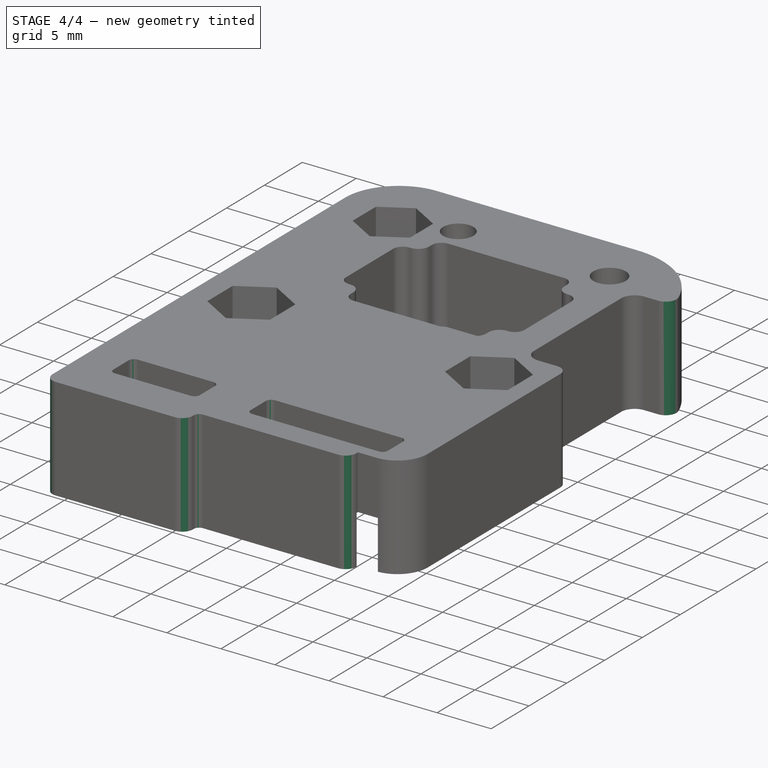
[diagram: stage 4 of 4 — iso view after this stage's code; geometry added in this stage tinted green]
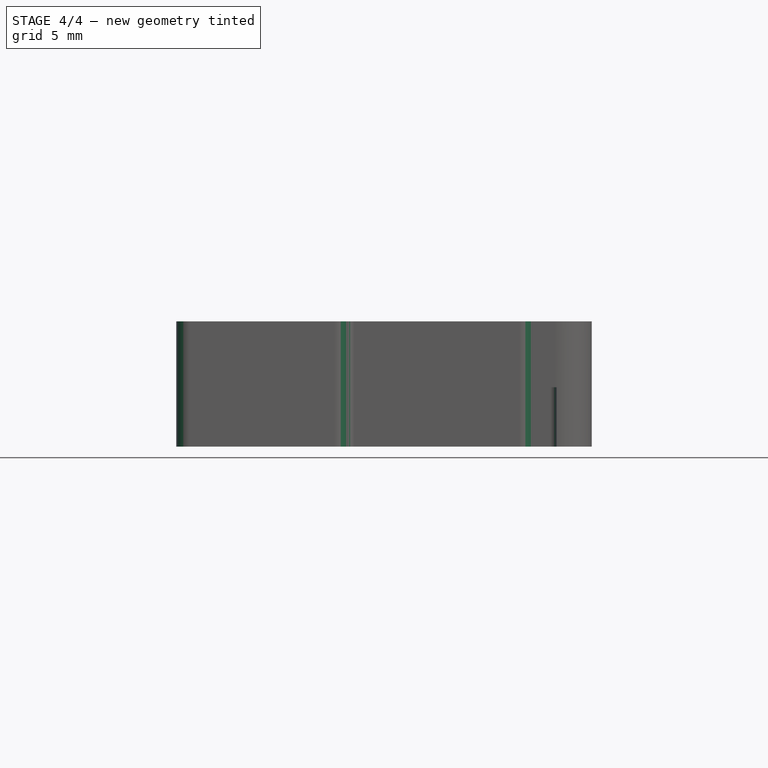
[diagram: stage 4 of 4 — front view after this stage's code; geometry added in this stage tinted green]
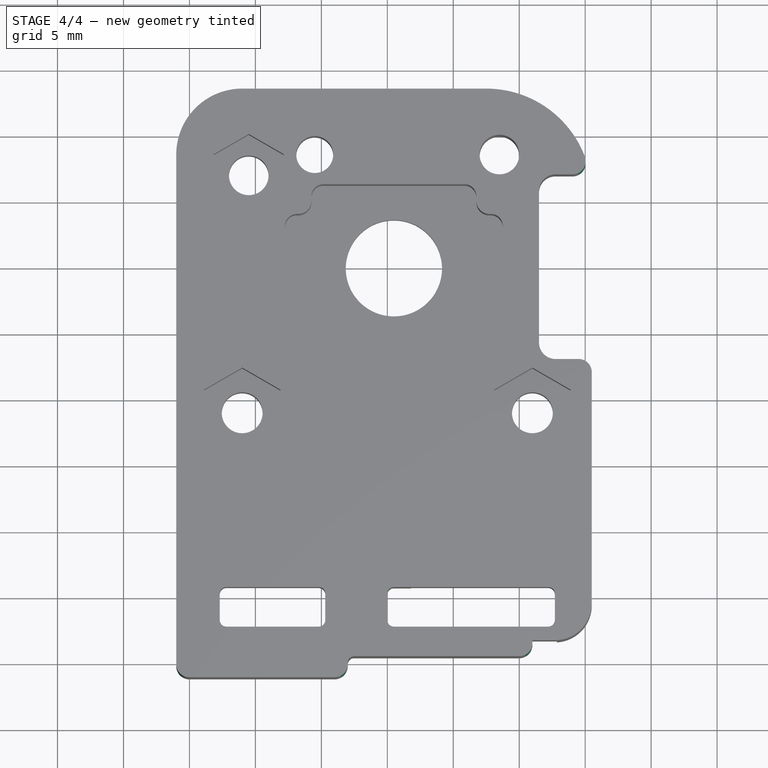
[diagram: stage 4 of 4 — top view after this stage's code; geometry added in this stage tinted green]
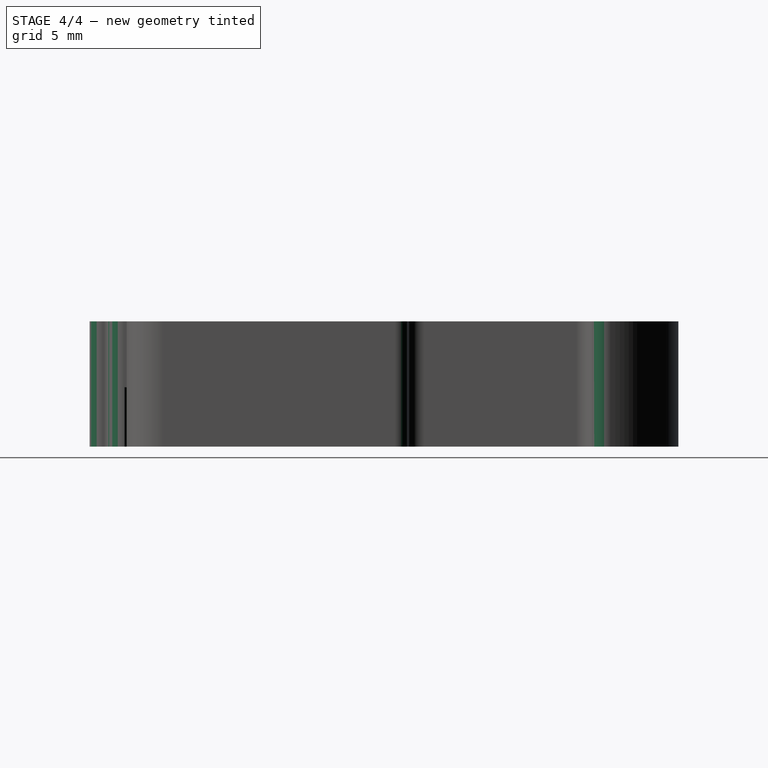
[diagram: stage 4 of 4 — right view after this stage's code; geometry added in this stage tinted green]
FEATURE [PartDesign::Fillet] Fillet
  Base = -> Pocket007 [Edge134,Edge129,Edge101,Edge1,Edge2,Edge103,Edge137]
  BaseFeature = -> Pocket007
  Radius = 1
FEATURE [PartDesign::Fillet] Fillet001
  Base = -> Fillet [Edge113,Edge129,Edge303,Edge308,Edge306,Edge288,Edge124,Edge304,Edge251,Edge311,Edge255,Edge253,Edge250,Edge287,Edge282,Edge231,Edge227,Edge226,Edge233,Edge314,Edge229,Edge313,Edge309,Edge135,Edge235,Edge333]
  BaseFeature = -> Fillet
  Radius = 0.5
FEATURE [Sketcher::SketchObject] Sketch011
  MapMode = 5
  Placement = pos=(0,0,0) rot=(1,0,0;3.14159rad)
  Support = -> [Fillet001]
  sketch-geometry (7):
    g0: LineSegment StartX=-2.85 StartY=-10.03 StartZ=0 EndX=-2.85 EndY=-6.97002 EndZ=0
    g1: LineSegment StartX=-2.85 StartY=-6.97002 StartZ=0 EndX=-5.5 EndY=-5.44004 EndZ=0
    g2: LineSegment StartX=-5.5 StartY=-5.44004 StartZ=0 EndX=-8.15 EndY=-6.97002 EndZ=0
    g3: LineSegment StartX=-8.15 StartY=-6.97002 StartZ=0 EndX=-8.15 EndY=-10.03 EndZ=0
    g4: LineSegment StartX=-8.15 StartY=-10.03 StartZ=0 EndX=-5.5 EndY=-11.56 EndZ=0
    g5: LineSegment StartX=-5.5 StartY=-11.56 StartZ=0 EndX=-2.85 EndY=-10.03 EndZ=0
    g6: Circle [constr] CenterX=-5.5 CenterY=-8.5 CenterZ=0 NormalX=0 NormalY=0 NormalZ=1 AngleXU=0 Radius=3.05996
  constraints (17):
    c: Coincident(g0,g1)
    c: Coincident(g1,g2)
    c: Coincident(g2,g3)
    c: Coincident(g3,g4)
    c: Coincident(g4,g5)
    c: Coincident(g5,g0)
    c: Equal(g0, g1-g5) x5
    c: PointOnObject(g0,g6)
    c: PointOnObject(g1,g6)
    c: PointOnObject(g2,g6)
    c: PointOnObject(g3,g6)
    c: PointOnObject(g4,g6)
    c: PointOnObject(g5,g6)
    c: DistanceX(g6) = -5.5
    c: DistanceY(g6,g-1) = 8.5
    c: Angle(g5) = 0.523599
    c: Distance(g2,g0) = 5.3
FEATURE [PartDesign::Pocket] Pocket008
  BaseFeature = -> Fillet001
  Length = 2.2
  Length2 = 100
  Profile = -> Sketch011
  Type = 0
FEATURE [PartDesign::Body] Body  label="3d_holder_left_hybrid_2nd_rotary"
  Group = -> [Sketch,Pad,Sketch005,Sketch006,Sketch002,Pocket,Sketch007,Pocket001,Sketch008,Pocket002,Sketch009,Pocket003,Pocket004,Sketch010,Pocket006,Pocket007,Fillet,Fillet001,Sketch011,Pocket008]
  Origin = -> Origin
  Tip = -> Pocket008
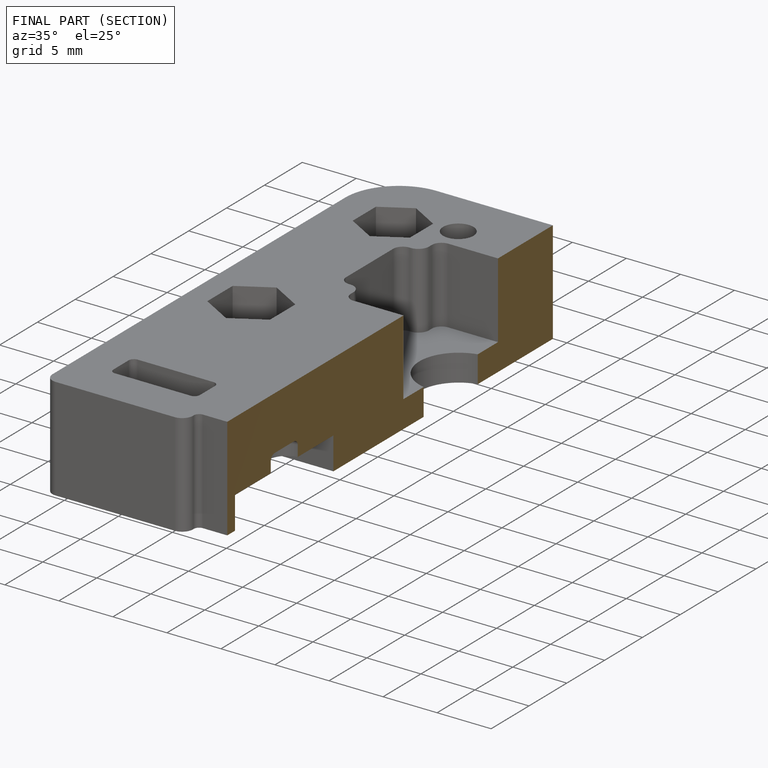
[diagram: finished part — half-section view (interior)]
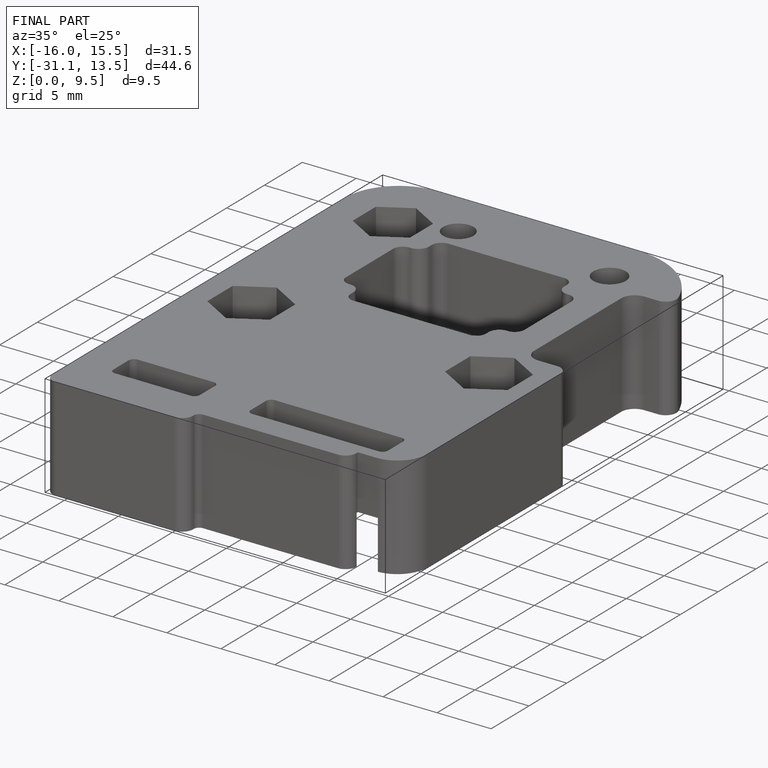
[diagram: finished part — iso view with bounding-box wireframe]
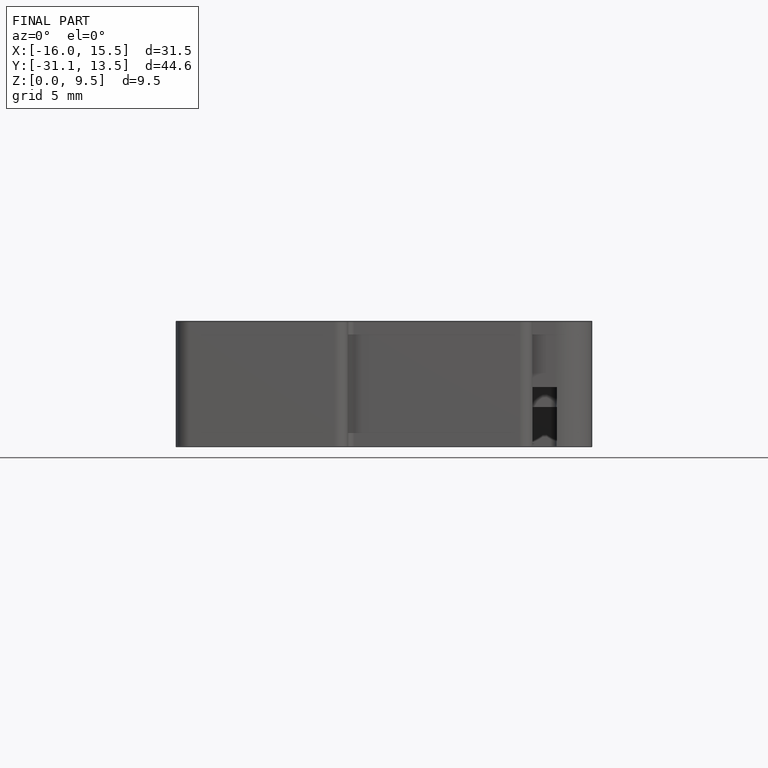
[diagram: finished part — front view with bounding-box wireframe]
